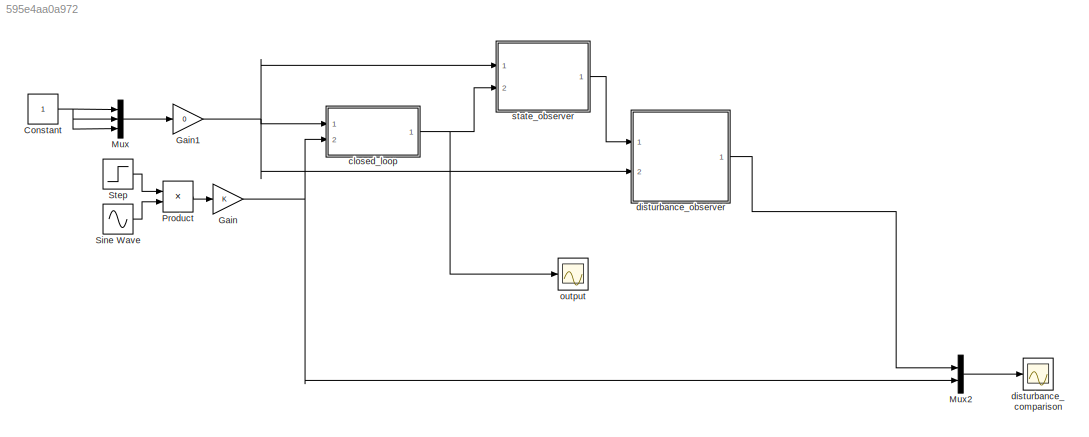
MODEL slx_595e4aa0a972
KIND model
CONFIG AbsTol = auto
CONFIG FixedStep = 1e-4
CONFIG MaxStep = 1e-3
CONFIG MinStep = auto
CONFIG RelTol = 1e-3
CONFIG SampleTimeConstraint = Unconstrained
CONFIG Solver = ode45
CONFIG SolverMode = Auto
CONFIG SolverName = ode45
CONFIG StartTime = 0.0
CONFIG StopTime = 10
BLOCK [Constant] Constant
BLOCK [Gain] Gain
  OutDataTypeStr = Inherit: Inherit via internal rule
  ParamDataTypeStr = Inherit: Inherit via internal rule
  SaturateOnIntegerOverflow = off
BLOCK [Gain] Gain1
  Gain = 0
  OutDataTypeStr = Inherit: Inherit via internal rule
  ParamDataTypeStr = Inherit: Inherit via internal rule
  SaturateOnIntegerOverflow = off
BLOCK [Mux] Mux
  DisplayOption = bar
  Inputs = 3
  Ports = [3, 1]
BLOCK [Mux] Mux2
  DisplayOption = bar
  Inputs = 2
  Ports = [2, 1]
BLOCK [Product] Product
  InputSameDT = off
  OutDataTypeStr = Inherit: Inherit via internal rule
  Ports = [2, 1]
  RndMeth = Floor
  SaturateOnIntegerOverflow = off
BLOCK [Sin] Sine Wave
  Frequency = 10
  Ports = [0, 1]
  SampleTime = 0
BLOCK [Step] Step
  After = 0
  Before = 8
  SampleTime = 0
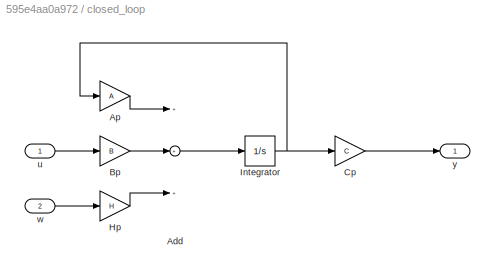
BLOCK [SubSystem] closed_loop
  Ports = [2, 1]
  RequestExecContextInheritance = off
BLOCK [Sum] closed_loop/Add
  InputSameDT = off
  Inputs = +++
  OutDataTypeStr = Inherit: Inherit via internal rule
  Ports = [3, 1]
  SaturateOnIntegerOverflow = off
BLOCK [Gain] closed_loop/Ap
  Gain = A
  Multiplication = Matrix(K*u)
  OutDataTypeStr = Inherit: Inherit via internal rule
  ParamDataTypeStr = Inherit: Inherit via internal rule
  SaturateOnIntegerOverflow = off
BLOCK [Gain] closed_loop/Bp
  Gain = B
  Multiplication = Matrix(K*u)
  OutDataTypeStr = Inherit: Inherit via internal rule
  ParamDataTypeStr = Inherit: Inherit via internal rule
  SaturateOnIntegerOverflow = off
BLOCK [Gain] closed_loop/Cp
  Gain = C
  Multiplication = Matrix(K*u)
  OutDataTypeStr = Inherit: Inherit via internal rule
  ParamDataTypeStr = Inherit: Inherit via internal rule
  SaturateOnIntegerOverflow = off
BLOCK [Gain] closed_loop/Hp
  Gain = H
  Multiplication = Matrix(K*u)
  OutDataTypeStr = Inherit: Inherit via internal rule
  ParamDataTypeStr = Inherit: Inherit via internal rule
  SaturateOnIntegerOverflow = off
BLOCK [Integrator] closed_loop/Integrator
  Ports = [1, 1]
BLOCK [Inport] closed_loop/u
  IconDisplay = Port number
BLOCK [Inport] closed_loop/w
  IconDisplay = Port number
  Port = 2
BLOCK [Outport] closed_loop/y
  IconDisplay = Port number
BLOCK [Scope] disturbance_comparison
  Floating = off
  LegendLocations = 0.895     0.91987    0.084906    0.036364
  LimitDataPoints = off
  NumInputPorts = 1
  Ports = [1]
  ShowLegends = on
  YMax = 850
  YMin = -50
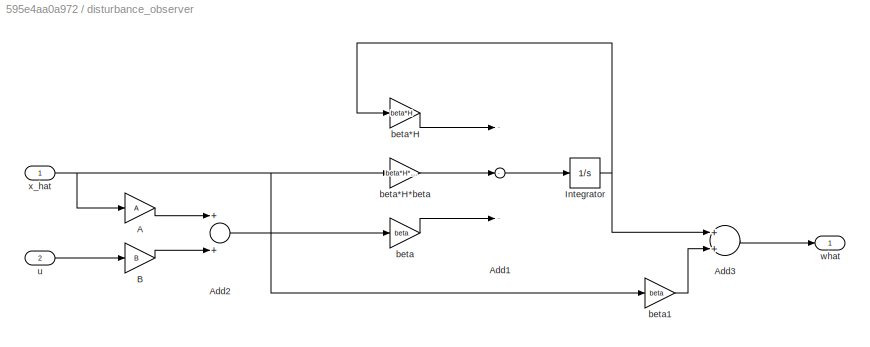
BLOCK [SubSystem] disturbance_observer
  Ports = [2, 1]
  RequestExecContextInheritance = off
BLOCK [Gain] disturbance_observer/A
  Gain = A
  Multiplication = Matrix(K*u)
  OutDataTypeStr = Inherit: Inherit via internal rule
  ParamDataTypeStr = Inherit: Inherit via internal rule
  SaturateOnIntegerOverflow = off
BLOCK [Sum] disturbance_observer/Add1
  InputSameDT = off
  Inputs = ---
  OutDataTypeStr = Inherit: Inherit via internal rule
  Ports = [3, 1]
  SaturateOnIntegerOverflow = off
BLOCK [Sum] disturbance_observer/Add2
  InputSameDT = off
  OutDataTypeStr = Inherit: Inherit via internal rule
  Ports = [2, 1]
  SaturateOnIntegerOverflow = off
BLOCK [Sum] disturbance_observer/Add3
  InputSameDT = off
  OutDataTypeStr = Inherit: Inherit via internal rule
  Ports = [2, 1]
  SaturateOnIntegerOverflow = off
BLOCK [Gain] disturbance_observer/B
  Gain = B
  Multiplication = Matrix(K*u)
  OutDataTypeStr = Inherit: Inherit via internal rule
  ParamDataTypeStr = Inherit: Inherit via internal rule
  SaturateOnIntegerOverflow = off
BLOCK [Integrator] disturbance_observer/Integrator
  Ports = [1, 1]
BLOCK [Gain] disturbance_observer/beta
  Gain = beta
  Multiplication = Matrix(K*u)
  OutDataTypeStr = Inherit: Inherit via internal rule
  ParamDataTypeStr = Inherit: Inherit via internal rule
  SaturateOnIntegerOverflow = off
BLOCK [Gain] disturbance_observer/beta*H
  Gain = beta*H
  Multiplication = Matrix(K*u)
  OutDataTypeStr = Inherit: Inherit via internal rule
  ParamDataTypeStr = Inherit: Inherit via internal rule
  SaturateOnIntegerOverflow = off
BLOCK [Gain] disturbance_observer/beta*H*beta
  Gain = beta*H*beta
  Multiplication = Matrix(K*u)
  OutDataTypeStr = Inherit: Inherit via internal rule
  ParamDataTypeStr = Inherit: Inherit via internal rule
  SaturateOnIntegerOverflow = off
BLOCK [Gain] disturbance_observer/beta1
  Gain = beta
  Multiplication = Matrix(K*u)
  OutDataTypeStr = Inherit: Inherit via internal rule
  ParamDataTypeStr = Inherit: Inherit via internal rule
  SaturateOnIntegerOverflow = off
BLOCK [Inport] disturbance_observer/u
  IconDisplay = Port number
  Port = 2
BLOCK [Outport] disturbance_observer/what
  IconDisplay = Port number
BLOCK [Inport] disturbance_observer/x_hat
  IconDisplay = Port number
BLOCK [Scope] output
  Floating = off
  LimitDataPoints = off
  NumInputPorts = 1
  Ports = [1]
  SaveName = ScopeData5
  YMax = -2.1684e-19
  YMin = -0.0024
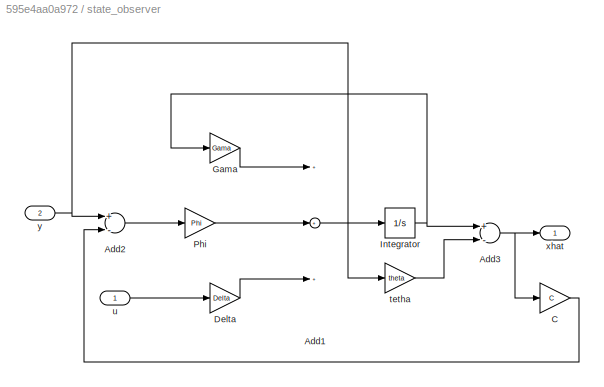
BLOCK [SubSystem] state_observer
  Ports = [2, 1]
  RequestExecContextInheritance = off
BLOCK [Sum] state_observer/Add1
  InputSameDT = off
  Inputs = +++
  OutDataTypeStr = Inherit: Inherit via internal rule
  Ports = [3, 1]
  SaturateOnIntegerOverflow = off
BLOCK [Sum] state_observer/Add2
  InputSameDT = off
  Inputs = +-
  OutDataTypeStr = Inherit: Inherit via internal rule
  Ports = [2, 1]
  SaturateOnIntegerOverflow = off
BLOCK [Sum] state_observer/Add3
  InputSameDT = off
  Inputs = +-
  OutDataTypeStr = Inherit: Inherit via internal rule
  Ports = [2, 1]
  SaturateOnIntegerOverflow = off
BLOCK [Gain] state_observer/C
  Gain = C
  Multiplication = Matrix(K*u)
  OutDataTypeStr = Inherit: Inherit via internal rule
  ParamDataTypeStr = Inherit: Inherit via internal rule
  SaturateOnIntegerOverflow = off
BLOCK [Gain] state_observer/Delta
  Gain = Delta
  Multiplication = Matrix(K*u)
  OutDataTypeStr = Inherit: Inherit via internal rule
  ParamDataTypeStr = Inherit: Inherit via internal rule
  SaturateOnIntegerOverflow = off
BLOCK [Gain] state_observer/Gama
  Gain = Gama
  Multiplication = Matrix(K*u)
  OutDataTypeStr = Inherit: Inherit via internal rule
  ParamDataTypeStr = Inherit: Inherit via internal rule
  SaturateOnIntegerOverflow = off
BLOCK [Integrator] state_observer/Integrator
  Ports = [1, 1]
BLOCK [Gain] state_observer/Phi
  Gain = Phi
  Multiplication = Matrix(K*u)
  OutDataTypeStr = Inherit: Inherit via internal rule
  ParamDataTypeStr = Inherit: Inherit via internal rule
  SaturateOnIntegerOverflow = off
BLOCK [Gain] state_observer/tetha
  Gain = theta
  Multiplication = Matrix(K*u)
  OutDataTypeStr = Inherit: Inherit via internal rule
  ParamDataTypeStr = Inherit: Inherit via internal rule
  SaturateOnIntegerOverflow = off
BLOCK [Inport] state_observer/u
  IconDisplay = Port number
BLOCK [Outport] state_observer/xhat
  IconDisplay = Port number
BLOCK [Inport] state_observer/y
  IconDisplay = Port number
  Port = 2
NET Constant:1 -> Mux:1, Mux:2, Mux:3
NET Gain1:1 -> closed_loop:1, disturbance_observer:2, state_observer:1
NET Gain:1 -> Mux2:2, closed_loop:2
LINE Mux2:1 -> disturbance_comparison:1
LINE Mux:1 -> Gain1:1
LINE Product:1 -> Gain:1
LINE Sine Wave:1 -> Product:2
LINE Step:1 -> Product:1
LINE closed_loop/Add:1 -> closed_loop/Integrator:1
LINE closed_loop/Ap:1 -> closed_loop/Add:1
LINE closed_loop/Bp:1 -> closed_loop/Add:2
LINE closed_loop/Cp:1 -> closed_loop/y:1
LINE closed_loop/Hp:1 -> closed_loop/Add:3
NET closed_loop/Integrator:1 -> closed_loop/Ap:1, closed_loop/Cp:1
LINE closed_loop/u:1 -> closed_loop/Bp:1
LINE closed_loop/w:1 -> closed_loop/Hp:1
NET closed_loop:1 -> output:1, state_observer:2
LINE disturbance_observer/A:1 -> disturbance_observer/Add2:1
LINE disturbance_observer/Add1:1 -> disturbance_observer/Integrator:1
LINE disturbance_observer/Add2:1 -> disturbance_observer/beta:1
LINE disturbance_observer/Add3:1 -> disturbance_observer/what:1
LINE disturbance_observer/B:1 -> disturbance_observer/Add2:2
NET disturbance_observer/Integrator:1 -> disturbance_observer/Add3:1, disturbance_observer/beta*H:1
LINE disturbance_observer/beta*H*beta:1 -> disturbance_observer/Add1:2
LINE disturbance_observer/beta*H:1 -> disturbance_observer/Add1:1
LINE disturbance_observer/beta1:1 -> disturbance_observer/Add3:2
LINE disturbance_observer/beta:1 -> disturbance_observer/Add1:3
LINE disturbance_observer/u:1 -> disturbance_observer/B:1
NET disturbance_observer/x_hat:1 -> disturbance_observer/A:1, disturbance_observer/beta*H*beta:1, disturbance_observer/beta1:1
LINE disturbance_observer:1 -> Mux2:1
LINE state_observer/Add1:1 -> state_observer/Integrator:1
LINE state_observer/Add2:1 -> state_observer/Phi:1
NET state_observer/Add3:1 -> state_observer/C:1, state_observer/xhat:1
LINE state_observer/C:1 -> state_observer/Add2:2
LINE state_observer/Delta:1 -> state_observer/Add1:3
LINE state_observer/Gama:1 -> state_observer/Add1:1
NET state_observer/Integrator:1 -> state_observer/Add3:1, state_observer/Gama:1
LINE state_observer/Phi:1 -> state_observer/Add1:2
LINE state_observer/tetha:1 -> state_observer/Add3:2
LINE state_observer/u:1 -> state_observer/Delta:1
NET state_observer/y:1 -> state_observer/Add2:1, state_observer/tetha:1
LINE state_observer:1 -> disturbance_observer:1
note: NET lines group one-source signal fan-out (src -> all destinations, sorted); 1:1 wires keep LINE
